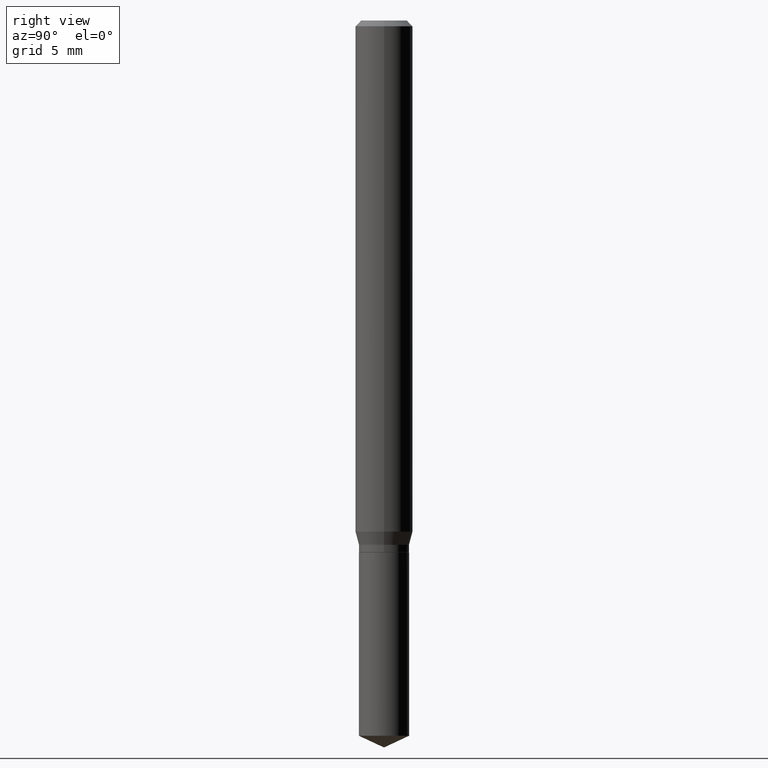
[diagram: clean part render]
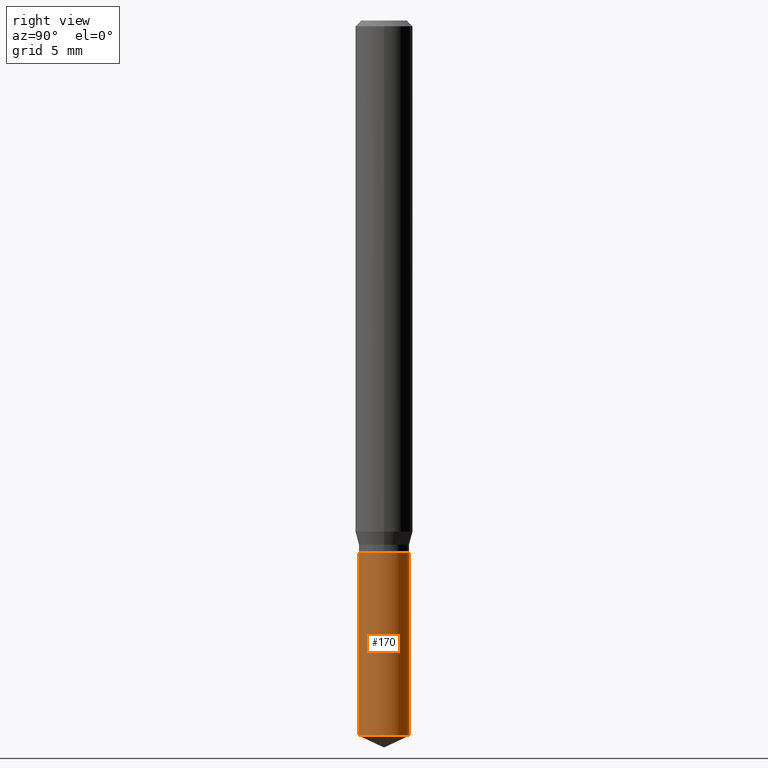
[diagram: same view with one face highlighted and labeled with its STEP entity id]
A machine part, right view. The second image highlights one B-rep face of the part: STEP entity #170.
In plain terms, the highlighted cylindrical surface (edge-blend (fillet) strip) has radius 1.3145 mm, axis along (-0, 0, 1).
Its self-contained STEP definition (entity closure, byte-faithful):
#4 = CYLINDRICAL_SURFACE ( 'NONE', #436, 0.05175000000000000433 ) ;
#20 = EDGE_CURVE ( 'NONE', #295, #437, #80, .T. ) ;
#34 = DIRECTION ( 'NONE',  ( -2.445458899330790108E-29, 3.491495526022433205E-15, 1.000000000000000000 ) ) ;
#69 = EDGE_CURVE ( 'NONE', #287, #219, #489, .T. ) ;
#76 = ORIENTED_EDGE ( 'NONE', *, *, #98, .T. ) ;
#80 = CIRCLE ( 'NONE', #383, 0.05175000000000000433 ) ;
#83 = DIRECTION ( 'NONE',  ( -6.982962677686265133E-15, -1.000000000000000000, 2.639466660545181459E-15 ) ) ;
#98 = EDGE_CURVE ( 'NONE', #437, #219, #340, .T. ) ;
#130 = DIRECTION ( 'NONE',  ( -2.445458899330790108E-29, 3.491495526022433205E-15, 1.000000000000000000 ) ) ;
#133 = DIRECTION ( 'NONE',  ( -6.982962677686265133E-15, -1.000000000000000000, 2.639466660545181459E-15 ) ) ;
#137 = DIRECTION ( 'NONE',  ( -2.445458899330790108E-29, 3.491495526022433599E-15, 1.000000000000000000 ) ) ;
#157 = CARTESIAN_POINT ( 'NONE',  ( 2.676565608369631794E-29, -3.821426325363822773E-15, -1.094499999999999806 ) ) ;
#163 = CARTESIAN_POINT ( 'NONE',  ( 2.676565608369631794E-29, -3.821426325363822773E-15, -1.094499999999999806 ) ) ;
#170 = ADVANCED_FACE ( 'NONE', ( #430 ), #4, .T. ) ;
#219 = VERTEX_POINT ( 'NONE', #273 ) ;
#224 = EDGE_CURVE ( 'NONE', #295, #287, #276, .T. ) ;
#228 = DIRECTION ( 'NONE',  ( -2.445458899330790108E-29, 3.491495526022433599E-15, 1.000000000000000000 ) ) ;
#232 = CARTESIAN_POINT ( 'NONE',  ( 3.677058657558785503E-16, 0.05174999999999617406, -1.094500000000000028 ) ) ;
#241 = CARTESIAN_POINT ( 'NONE',  ( -3.613683185702375323E-16, -0.05175000000000382766, -1.094499999999999806 ) ) ;
#243 = VECTOR ( 'NONE', #228, 39.37007874015748143 ) ;
#262 = EDGE_LOOP ( 'NONE', ( #439, #76, #429, #409 ) ) ;
#264 = CARTESIAN_POINT ( 'NONE',  ( 3.599649503346007768E-29, -5.139356179075677332E-15, -1.471968578690479035 ) ) ;
#273 = CARTESIAN_POINT ( 'NONE',  ( 3.677058657558878194E-16, 0.05174999999999617406, -1.094500000000000028 ) ) ;
#276 = LINE ( 'NONE', #312, #363 ) ;
#287 = VERTEX_POINT ( 'NONE', #241 ) ;
#295 = VERTEX_POINT ( 'NONE', #385 ) ;
#302 = DIRECTION ( 'NONE',  ( -6.982962677686265133E-15, -1.000000000000000000, 5.278933321090362918E-15 ) ) ;
#312 = CARTESIAN_POINT ( 'NONE',  ( -3.613683185702375323E-16, -0.05175000000000382766, -1.094499999999999806 ) ) ;
#340 = LINE ( 'NONE', #232, #243 ) ;
#363 = VECTOR ( 'NONE', #137, 39.37007874015748143 ) ;
#383 = AXIS2_PLACEMENT_3D ( 'NONE', #264, #412, #302 ) ;
#385 = CARTESIAN_POINT ( 'NONE',  ( -3.613683185702283618E-16, -0.05175000000000515993, -1.471968578690478591 ) ) ;
#409 = ORIENTED_EDGE ( 'NONE', *, *, #224, .F. ) ;
#412 = DIRECTION ( 'NONE',  ( -2.445458899330790108E-29, 3.491495526022433205E-15, 1.000000000000000000 ) ) ;
#429 = ORIENTED_EDGE ( 'NONE', *, *, #69, .F. ) ;
#430 = FACE_OUTER_BOUND ( 'NONE', #262, .T. ) ;
#436 = AXIS2_PLACEMENT_3D ( 'NONE', #163, #130, #133 ) ;
#437 = VERTEX_POINT ( 'NONE', #477 ) ;
#439 = ORIENTED_EDGE ( 'NONE', *, *, #20, .T. ) ;
#476 = AXIS2_PLACEMENT_3D ( 'NONE', #157, #34, #83 ) ;
#477 = CARTESIAN_POINT ( 'NONE',  ( 3.677058657558878687E-16, 0.05174999999999486955, -1.471968578690479257 ) ) ;
#489 = CIRCLE ( 'NONE', #476, 0.05175000000000000433 ) ;